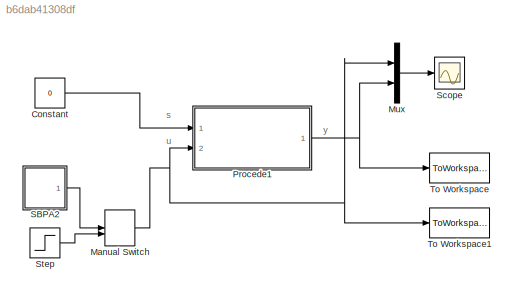
MODEL slx_b6dab41308df
KIND model
CONFIG AbsTol = auto
CONFIG EnableMultiTasking = off
CONFIG FixedStep = auto
CONFIG MaxStep = auto
CONFIG MinStep = auto
CONFIG RelTol = 1e-3
CONFIG SampleTimeConstraint = Unconstrained
CONFIG Solver = VariableStepAuto
CONFIG SolverName = VariableStepAuto
CONFIG StartTime = 0.0
CONFIG StopTime = 10.0
BLOCK [Constant] Constant
  Value = 0
BLOCK [ManualSwitch] Manual Switch
  CurrentSetting = 0
BLOCK [Mux] Mux
  DisplayOption = bar
  Inputs = 2
  Ports = [2, 1]
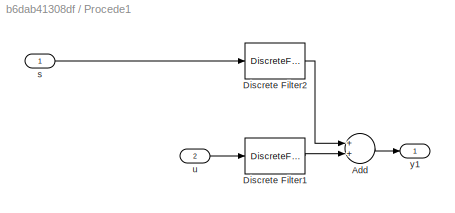
BLOCK [SubSystem] Procede1
  Ports = [2, 1]
  RequestExecContextInheritance = off
BLOCK [Sum] Procede1/Add
  InputSameDT = off
  OutDataTypeStr = Inherit: Inherit via internal rule
  Ports = [2, 1]
  SaturateOnIntegerOverflow = off
BLOCK [DiscreteFilter] Procede1/Discrete Filter1
  Denominator = [1.0000\n   -1.7389\n    1.0408\n   -0.7931\n    2.5618\n   -2.8601\n    1.7853\n   -1.7239\n    2.0897\n   -1.2512\n    1.0092\n   -1.0000\n    0.5016\n    0.0120\n    0.0449]'
  InputPortMap = u0
  Numerator = [     0\n    1.0180\n   -2.1169\n    0.6843\n   -0.3008\n    2.9943\n   -3.0203\n    0.8812\n   -1.5539\n    2.2356\n   -0.7953\n    0.6724\n   -1.0735\n    0.1364\n    0.2454]'
  Ports = [1, 1]
  SampleTime = Te
BLOCK [DiscreteFilter] Procede1/Discrete Filter2
  Denominator = [1.0000\n   -1.7389\n    1.0408\n   -0.7931\n    2.5618\n   -2.8601\n    1.7853\n   -1.7239\n    2.0897\n   -1.2512\n    1.0092\n   -1.0000\n    0.5016\n    0.0120\n    0.0449]'
  InputPortMap = u0
  Numerator = [     0\n    1.0180\n   -2.1169\n    0.6843\n   -0.3008\n    2.9943\n   -3.0203\n    0.8812\n   -1.5539\n    2.2356\n   -0.7953\n    0.6724\n   -1.0735\n    0.1364\n    0.2454]'
  Ports = [1, 1]
  SampleTime = Te
BLOCK [Inport] Procede1/s
  IconDisplay = Port number
BLOCK [Inport] Procede1/u
  IconDisplay = Port number
  Port = 2
BLOCK [Outport] Procede1/y1
  IconDisplay = Port number
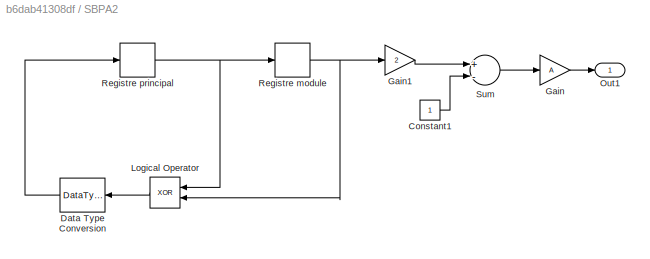
BLOCK [SubSystem] SBPA2
  Ports = [0, 1]
  RequestExecContextInheritance = off
BLOCK [Constant] SBPA2/Constant1
BLOCK [DataTypeConversion] SBPA2/Data Type Conversion
  RndMeth = Floor
  SampleTime = p*Te
  SaturateOnIntegerOverflow = off
BLOCK [Gain] SBPA2/Gain
  Gain = A
BLOCK [Gain] SBPA2/Gain1
  Gain = 2
BLOCK [Logic] SBPA2/Logical Operator
  AllPortsSameDT = off
  Operator = XOR
  OutDataTypeStr = boolean
  Ports = [2, 1]
  SampleTime = p*Te
BLOCK [Outport] SBPA2/Out1
  IconDisplay = Port number
BLOCK [Delay] SBPA2/Registre module
  DelayLength = nr-1
  InitialCondition = zeros(1,nr-1)
  InputPortMap = u0
  InputProcessing = Inherited
  Ports = [1, 1]
  SampleTime = p*Te
BLOCK [Delay] SBPA2/Registre principal
  DelayLength = 1
  InitialCondition = 1
  InputPortMap = u0
  InputProcessing = Inherited
  Ports = [1, 1]
  SampleTime = p*Te
BLOCK [Sum] SBPA2/Sum
  Inputs = +-
  Ports = [2, 1]
BLOCK [Scope] Scope
  Floating = off
  NumInputPorts = 1
  Ports = [1]
  ScopeSpecificationString = Simulink.scopes.TimeScopeBlockCfg('CurrentConfiguration', extmgr.ConfigurationSet(extmgr.Configuration('Core','General UI',true),extmgr.Configuration('Core','Source UI',true),extmgr.Configuration('Sources','WiredSimulink',true,'DataLogging',true,'DataLoggingVariableName','X','DataLoggingSaveFormat','Array','DataLoggingMaxPoints','120000','DataLoggingLimitDataPoints',true,'DataLoggingDecimation','1...<+2153ch>
BLOCK [Step] Step
  After = 0
  SampleTime = 0
  Time = 5
BLOCK [ToWorkspace] To Workspace
  MaxDataPoints = inf
  Ports = [1]
  SampleTime = -1
  VariableName = y
BLOCK [ToWorkspace] To Workspace1
  MaxDataPoints = inf
  Ports = [1]
  SampleTime = -1
  VariableName = u
ANNOTATION (root): s
ANNOTATION (root): u
ANNOTATION (root): y
LINE Constant:1 -> Procede1:1
NET Manual Switch:1 -> Mux:1, Procede1:2, To Workspace1:1
LINE Mux:1 -> Scope:1
LINE Procede1/Add:1 -> Procede1/y1:1
LINE Procede1/Discrete Filter1:1 -> Procede1/Add:2
LINE Procede1/Discrete Filter2:1 -> Procede1/Add:1
LINE Procede1/s:1 -> Procede1/Discrete Filter2:1
LINE Procede1/u:1 -> Procede1/Discrete Filter1:1
NET Procede1:1 -> Mux:2, To Workspace:1
LINE SBPA2/Constant1:1 -> SBPA2/Sum:2
LINE SBPA2/Data Type Conversion:1 -> SBPA2/Registre principal:1
LINE SBPA2/Gain1:1 -> SBPA2/Sum:1
LINE SBPA2/Gain:1 -> SBPA2/Out1:1
LINE SBPA2/Logical Operator:1 -> SBPA2/Data Type Conversion:1
NET SBPA2/Registre module:1 -> SBPA2/Gain1:1, SBPA2/Logical Operator:2
NET SBPA2/Registre principal:1 -> SBPA2/Logical Operator:1, SBPA2/Registre module:1
LINE SBPA2/Sum:1 -> SBPA2/Gain:1
LINE SBPA2:1 -> Manual Switch:1
LINE Step:1 -> Manual Switch:2
note: NET lines group one-source signal fan-out (src -> all destinations, sorted); 1:1 wires keep LINE
